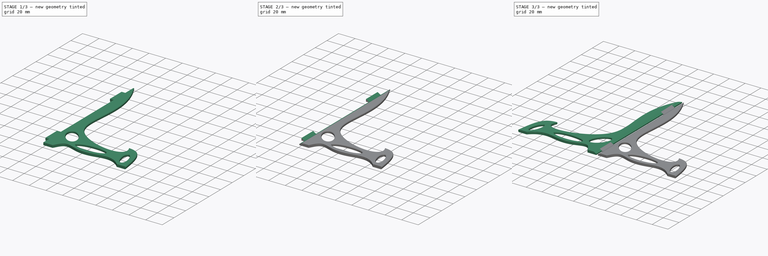
[diagram: build sequence overview — one tinted view per stage of 3, left to right]
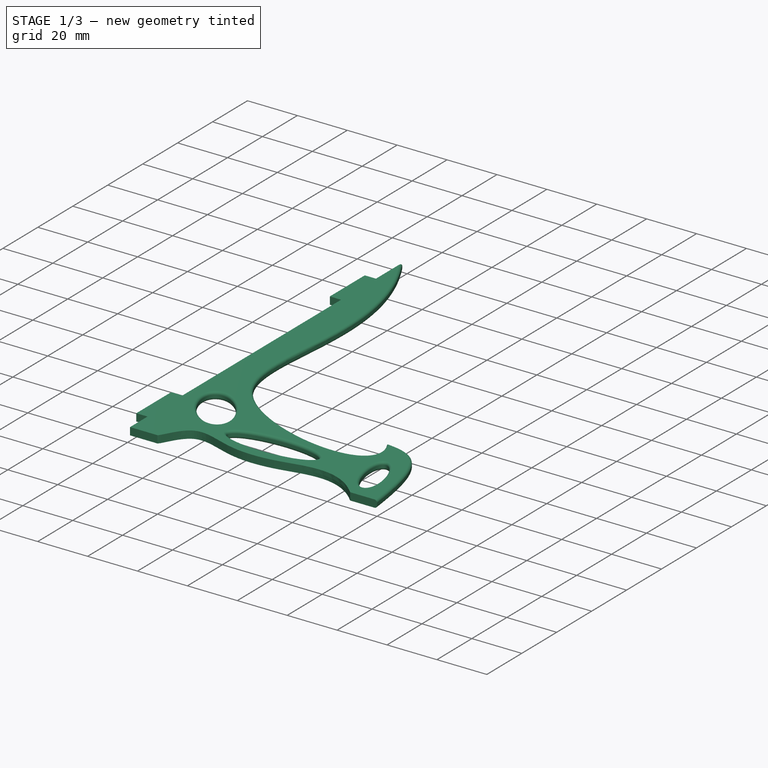
[diagram: stage 1 of 3 — iso view after this stage's code; geometry added in this stage tinted green]
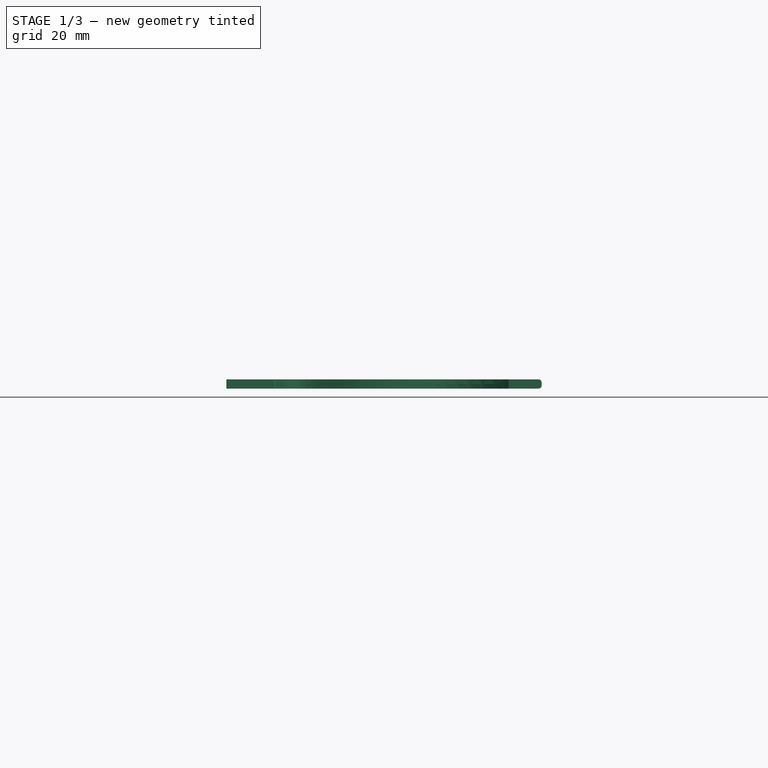
[diagram: stage 1 of 3 — front view after this stage's code; geometry added in this stage tinted green]
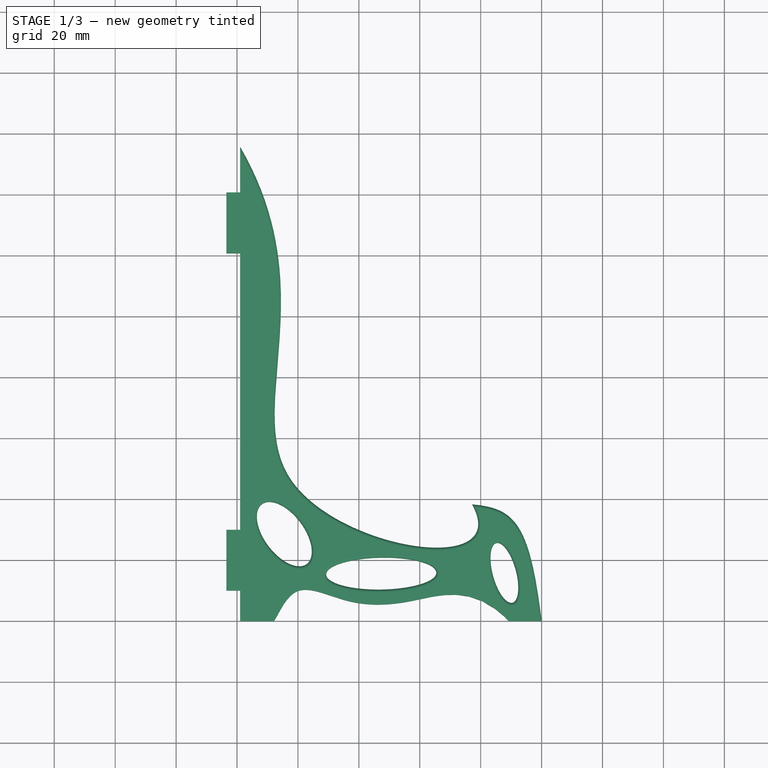
[diagram: stage 1 of 3 — top view after this stage's code; geometry added in this stage tinted green]
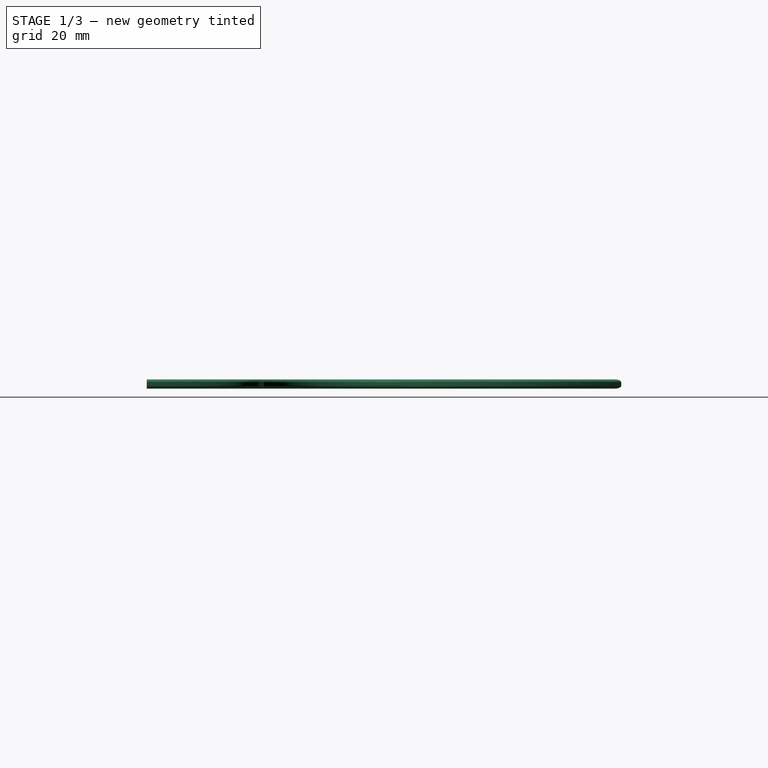
[diagram: stage 1 of 3 — right view after this stage's code; geometry added in this stage tinted green]
FCSTD DOCUMENT  (FreeCAD 0.20R27319 (Git))
Label: Plate Stand flex hinge
License: All rights reserved
LicenseURL: http://en.wikipedia.org/wiki/All_rights_reserved
objects: Sketcher::SketchObject×2, Spreadsheet::Sheet×1, PartDesign::Pad×1, PartDesign::Fillet×1, PartDesign::Pocket×1, PartDesign::Body×1, Part::Mirroring×1, Part::Fuse×1
note: 11 computed .brp shape members not serialized (recipe doc carries the construction recipe); baked Part::Feature solids carry a one-line shape summary decoded from their .brp

FEATURE [Sketcher::SketchObject] Sketch
  FullyConstrained = false
  MapMode = 5
  Support = -> [XY_Plane]
  sketch-geometry (55):
    g0-g3: Circle x4 (B-spline internal-alignment scaffolding for g4; pole/knot coordinates omitted)
    g4: BSplineCurve PolesCount=4 KnotsCount=2 Degree=3 IsPeriodic=0
    g5: GeomPoint X=77.1381 Y=38.3364 Z=0
    g6: GeomPoint X=100 Y=0 Z=0
    g7: Ellipse CenterX=15.5248 CenterY=28.5446 CenterZ=0 NormalX=0 NormalY=0 NormalZ=1 MajorRadius=12.2477 MinorRadius=6.51354 AngleXU=-0.925942
    g8: LineSegment StartX=22.8867 StartY=18.7564 StartZ=0 EndX=8.16296 EndY=38.3328 EndZ=0
    g9: LineSegment StartX=20.7304 StartY=32.4597 StartZ=0 EndX=10.3193 EndY=24.6294 EndZ=0
    g10: GeomPoint X=21.7593 Y=20.2553 Z=0
    g11: GeomPoint X=9.29036 Y=36.8338 Z=0
    g12: Ellipse CenterX=87.7776 CenterY=15.8203 CenterZ=0 NormalX=0 NormalY=0 NormalZ=1 MajorRadius=10.1255 MinorRadius=3.83233 AngleXU=-1.30426
    g13: LineSegment StartX=90.4445 StartY=6.05227 StartZ=0 EndX=85.1106 EndY=25.5883 EndZ=0
    g14: LineSegment StartX=91.4746 StartY=16.8297 StartZ=0 EndX=84.0806 EndY=14.8109 EndZ=0
    g15: GeomPoint X=90.2461 Y=6.77893 Z=0
    g16: GeomPoint X=85.309 Y=24.8616 Z=0
    g17: LineSegment StartX=1 StartY=0 StartZ=0 EndX=11.8069 EndY=0 EndZ=0
    g18: LineSegment StartX=100 StartY=0 StartZ=0 EndX=89.1931 EndY=0 EndZ=0
    g19-g25: Circle x7 (B-spline internal-alignment scaffolding for g26; pole/knot coordinates omitted)
    g26: BSplineCurve PolesCount=7 KnotsCount=5 Degree=3 IsPeriodic=0
    g27-g31: GeomPoint x5 (B-spline internal-alignment scaffolding for g26; pole/knot coordinates omitted)
    g32: Ellipse CenterX=47.3615 CenterY=15.5825 CenterZ=0 NormalX=0 NormalY=0 NormalZ=1 MajorRadius=18.0781 MinorRadius=5.2221 AngleXU=0.0168016
    g33: LineSegment StartX=65.437 StartY=15.8862 StartZ=0 EndX=29.2859 EndY=15.2788 EndZ=0
    g34: LineSegment StartX=47.2737 StartY=20.8039 StartZ=0 EndX=47.4492 EndY=10.3611 EndZ=0
    g35: GeomPoint X=64.6665 Y=15.8733 Z=0
    g36: GeomPoint X=30.0565 Y=15.2917 Z=0
    g37-g41: Circle x5 (B-spline internal-alignment scaffolding for g42; pole/knot coordinates omitted)
    g42: BSplineCurve PolesCount=5 KnotsCount=3 Degree=3 IsPeriodic=0
    g43: GeomPoint X=1 Y=155.774 Z=0
    g44: GeomPoint X=17.5271 Y=46.6979 Z=0
    g45: GeomPoint X=77.1381 Y=38.3364 Z=0
    g46: LineSegment StartX=1 StartY=155.774 StartZ=0 EndX=1 EndY=140.774 EndZ=0
    g47: LineSegment StartX=1 StartY=30 StartZ=0 EndX=-3.49694 EndY=30 EndZ=0
    g48: LineSegment StartX=-3.49694 StartY=30 StartZ=0 EndX=-3.49694 EndY=10 EndZ=0
    g49: LineSegment StartX=-3.49694 StartY=10 StartZ=0 EndX=1 EndY=10 EndZ=0
    g50: LineSegment StartX=1 StartY=10 StartZ=0 EndX=1 EndY=0 EndZ=0
    g51: LineSegment StartX=1 StartY=140.774 StartZ=0 EndX=-3.49694 EndY=140.774 EndZ=0
    g52: LineSegment StartX=-3.49694 StartY=140.774 StartZ=0 EndX=-3.49694 EndY=120.774 EndZ=0
    g53: LineSegment StartX=1 StartY=120.774 StartZ=0 EndX=1 EndY=30 EndZ=0
    g54: LineSegment StartX=-3.49694 StartY=120.774 StartZ=0 EndX=1 EndY=120.774 EndZ=0
  constraints (58):
    c: PointOnObject(g4,g-1)
    c: Weight(g0) = 1
    c: Equal(g0,g1)
    c: Equal(g0,g2)
    c: Equal(g0,g3)
    c: InternalAlignment(g0-g3 -> g4) x4
    c: InternalAlignment(g5,g4)
    c: InternalAlignment(g6,g4)
    c: InternalAlignment(g8-g11 -> g7) x4
    c: InternalAlignment(g13-g16 -> g12) x4
    c: PointOnObject(g17,g-1)
    c: Coincident(g18,g4)
    c: PointOnObject(g18,g-1)
    c: Equal(g17,g18)
    c: Coincident(g26,g17)
    c: Weight(g19) = 1
    c: Equal(g19,g20)
    c: PointOnObject(g20,g19)
    c: Equal(g19, g21-g25) x5
    c: Coincident(g26,g18)
    c: InternalAlignment(g19-g25 -> g26) x7
    c: InternalAlignment(g27-g31 -> g26) x5
    c: InternalAlignment(g33-g36 -> g32) x4
    c: DistanceX(g-1,g4) = 100
    c: Weight(g37) = 1
    c: Equal(g37, g38-g41) x4
    c: Coincident(g42,g4)
    c: InternalAlignment(g37-g41 -> g42) x5
    c: InternalAlignment(g43,g42)
    c: InternalAlignment(g44,g42)
    c: InternalAlignment(g45,g42)
    c: Coincident(g46,g42)
    c: Coincident(g50,g17)
    c: Vertical(g46)
    c: Horizontal(g17)
    c: DistanceX(g-1,g17) = 1
    c: Coincident(g47,g48)
    c: Coincident(g48,g49)
    c: Horizontal(g47)
    c: Horizontal(g49)
    c: Vertical(g48)
    c: Distance(g48) = 20
    c: DistanceY(g17,g49) = 10
    c: Coincident(g53,g47)
    c: PointOnObject(g50,g49)
    c: Coincident(g51,g52)
    c: Horizontal(g51)
    c: Vertical(g52)
    c: Coincident(g46,g51)
    c: Distance(g52) = 20
    c: Distance(g46) = 15
    c: Coincident(g54,g52)
    c: Coincident(g54,g53)
    c: Horizontal(g54)
    c: Vertical(g46,g53)
    c: Vertical(g53)
    c: Vertical(g49,g47)
    c: Vertical(g47,g52)
FEATURE [Spreadsheet::Sheet] Spreadsheet
  cells = A1=Height; B1(Height)=150; A2=Depth; B2(Depth)=100; A3=Thickness; B3(Thickness)=4; A4=XScale; B4(XScale)==Depth / 100; A5=YScale; B5(YScale)==Height / 150; A6=ZScale; B6(ZScale)==Thickness / 4; A7=Axle Diameter; B7(AxleDiameter)=1.5
FEATURE [PartDesign::Pad] Pad
  Direction = (0,0,1)
  Length = 3
  Length2 = 10
  Profile = -> Sketch
  ReferenceAxis = -> Sketch [N_Axis]
  Type = 0
FEATURE [Sketcher::SketchObject] Sketch001
  ExternalGeometry = -> [Pad]
  FullyConstrained = true
  MapMode = 5
  Placement = pos=(0,0,0) rot=(1,0,0;1.5708rad)
  Support = -> [Pad]
  sketch-geometry (3):
    g0: LineSegment StartX=-3.98372 StartY=3 StartZ=0 EndX=-4e-16 EndY=0.7 EndZ=0
    g1: LineSegment StartX=-4e-16 StartY=0.7 StartZ=0 EndX=3.98372 EndY=3 EndZ=0
    g2: LineSegment StartX=3.98372 StartY=3 StartZ=0 EndX=-3.98372 EndY=3 EndZ=0
  constraints (9):
    c: PointOnObject(g0,g-3)
    c: PointOnObject(g0,g-2)
    c: Coincident(g0,g1)
    c: PointOnObject(g1,g-3)
    c: Coincident(g1,g2)
    c: Coincident(g2,g0)
    c: Equal(g0,g1)
    c: Angle(g1,g0) = 2.0944
    c: DistanceY(g-1,g0) = 0.7
FEATURE [PartDesign::Fillet] Fillet
  Base = -> Pad [Edge50,Edge44,Edge3,Edge6,Edge47,Edge48,Edge45,Edge51,Edge4,Edge7]
  BaseFeature = -> Pad
  Radius = 1
  SupportTransform = false
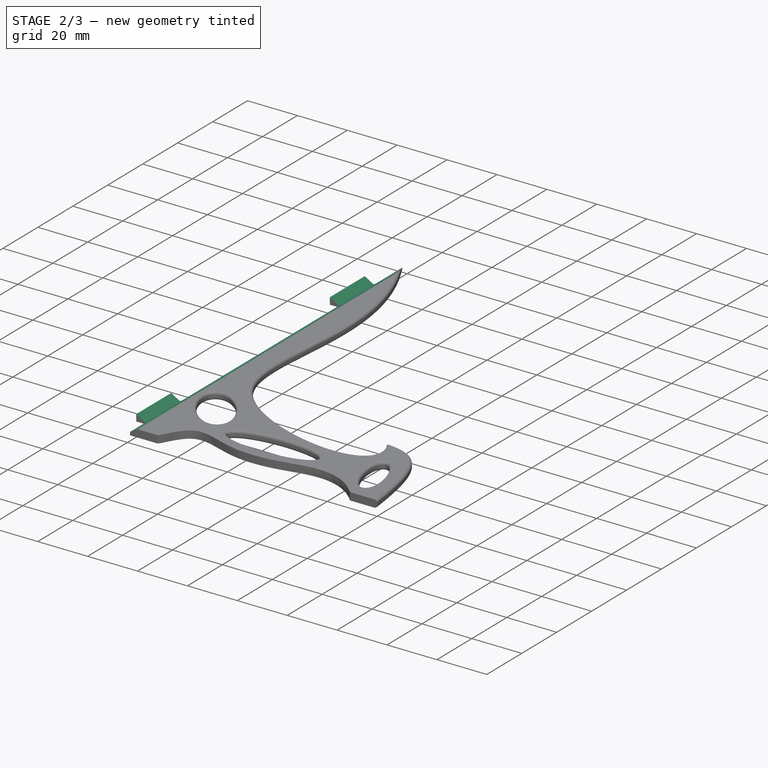
[diagram: stage 2 of 3 — iso view after this stage's code; geometry added in this stage tinted green]
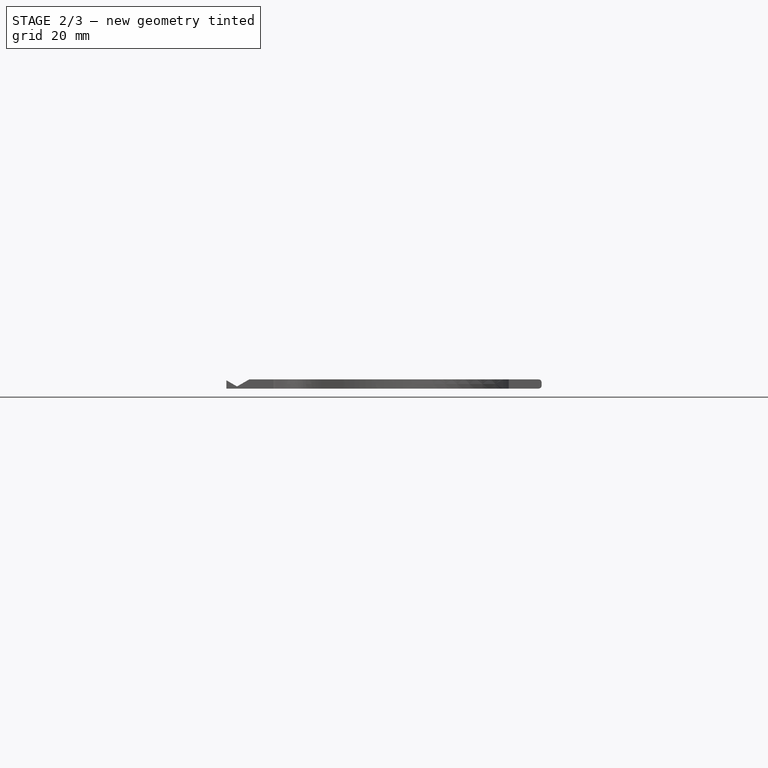
[diagram: stage 2 of 3 — front view after this stage's code; geometry added in this stage tinted green]
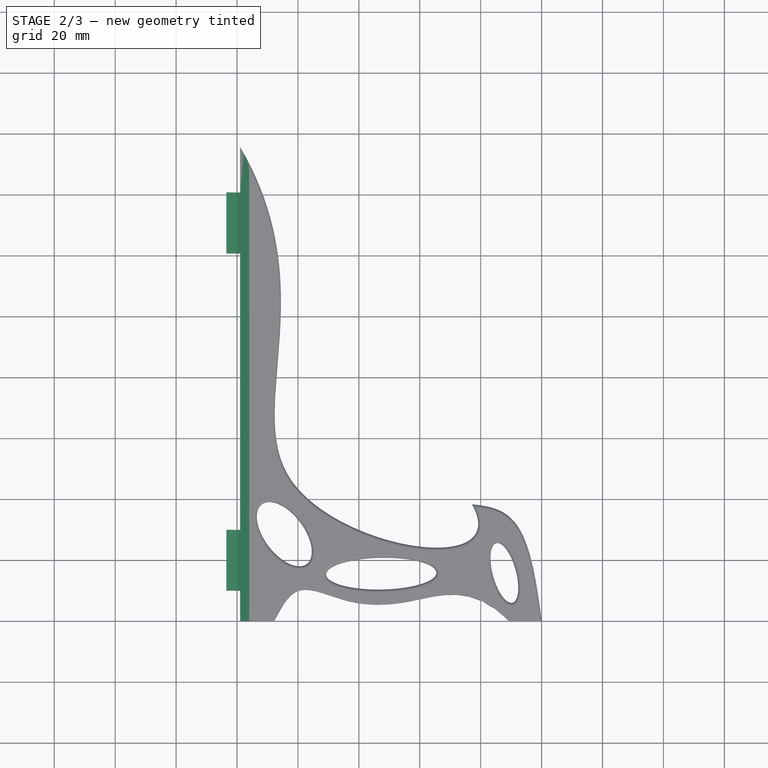
[diagram: stage 2 of 3 — top view after this stage's code; geometry added in this stage tinted green]
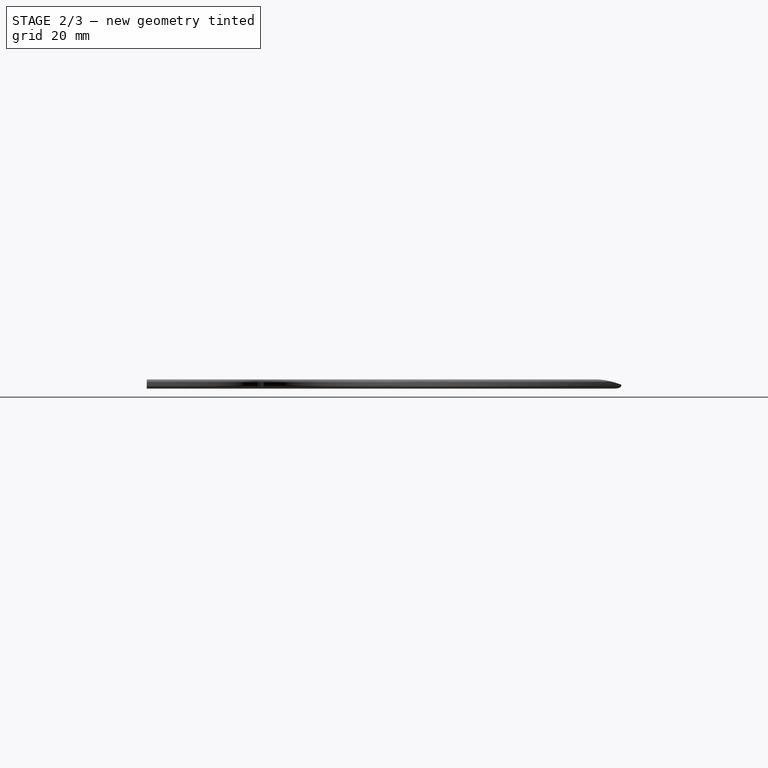
[diagram: stage 2 of 3 — right view after this stage's code; geometry added in this stage tinted green]
FEATURE [PartDesign::Pocket] Pocket
  BaseFeature = -> Fillet
  Direction = (0,1,-2e-16)
  Length = 5
  Length2 = 5
  Profile = -> Sketch001
  ReferenceAxis = -> Sketch001 [N_Axis]
  Type = 1
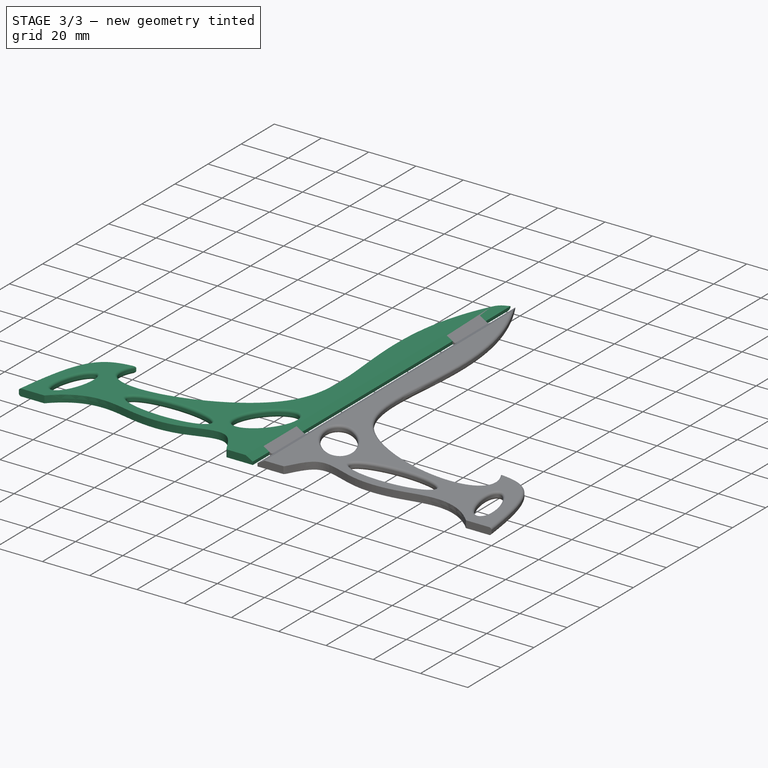
[diagram: stage 3 of 3 — iso view after this stage's code; geometry added in this stage tinted green]
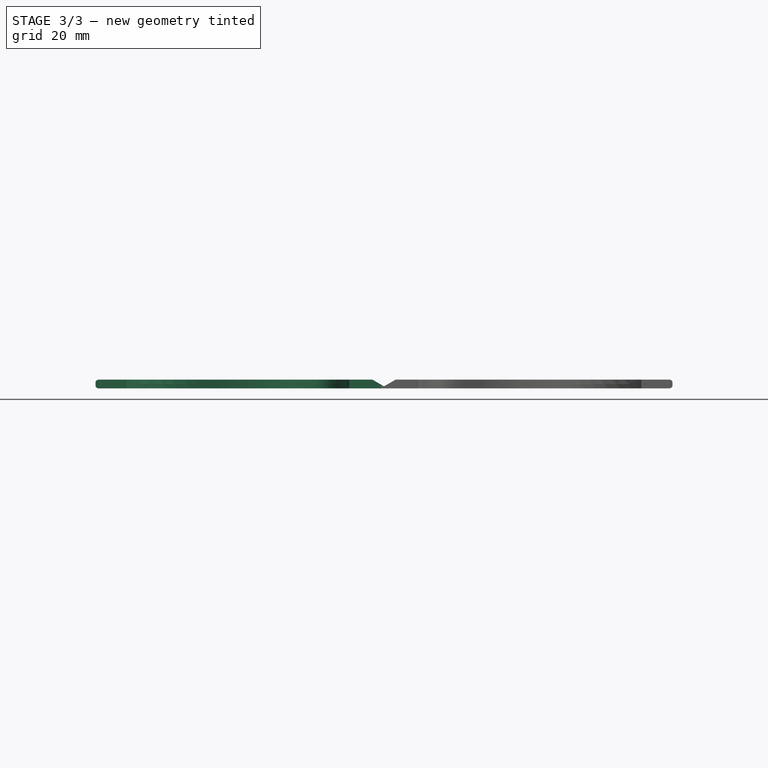
[diagram: stage 3 of 3 — front view after this stage's code; geometry added in this stage tinted green]
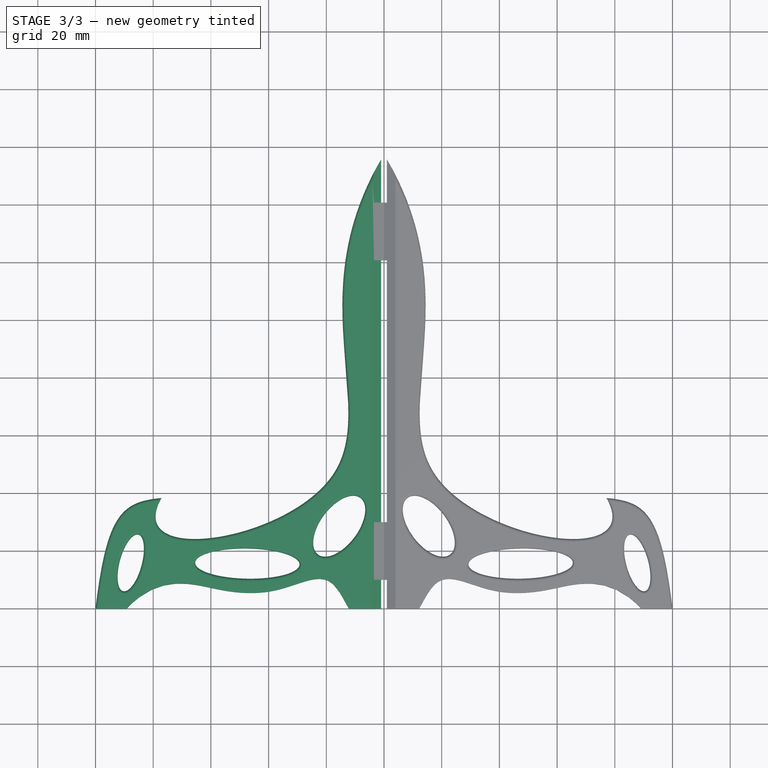
[diagram: stage 3 of 3 — top view after this stage's code; geometry added in this stage tinted green]
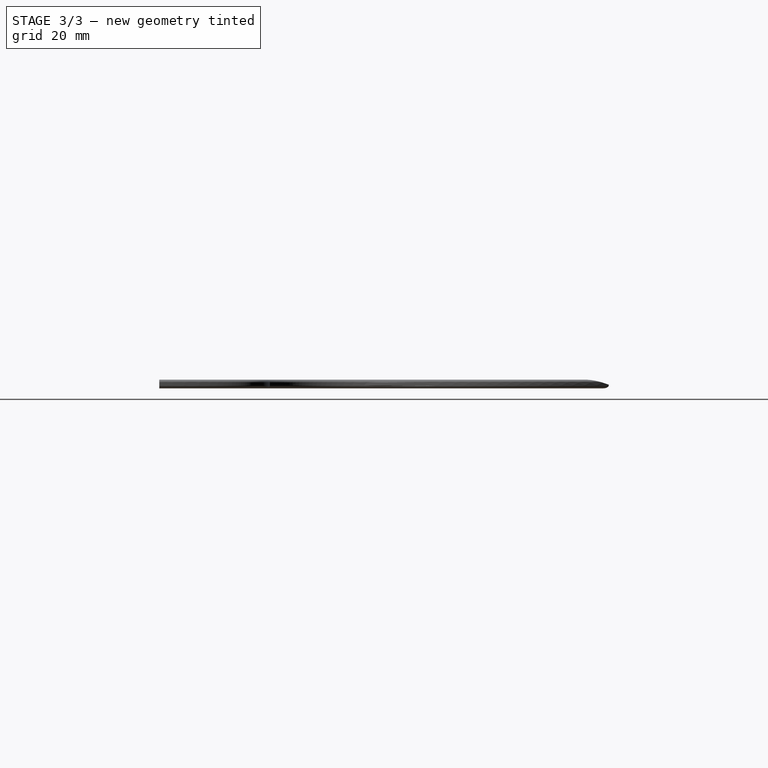
[diagram: stage 3 of 3 — right view after this stage's code; geometry added in this stage tinted green]
FEATURE [PartDesign::Body] Body
  Group = -> [Sketch,Pad,Fillet,Sketch001,Pocket]
  Origin = -> Origin
  Tip = -> Pocket
FEATURE [Part::Mirroring] Part__Mirroring  label="Pocket (Mirror #1)"
  Base = (0,0,0)
  Normal = (1,0,0)
  Source = -> Pocket
FEATURE [Part::Fuse] Fusion
  Base = -> Pocket
  Tool = -> Part__Mirroring
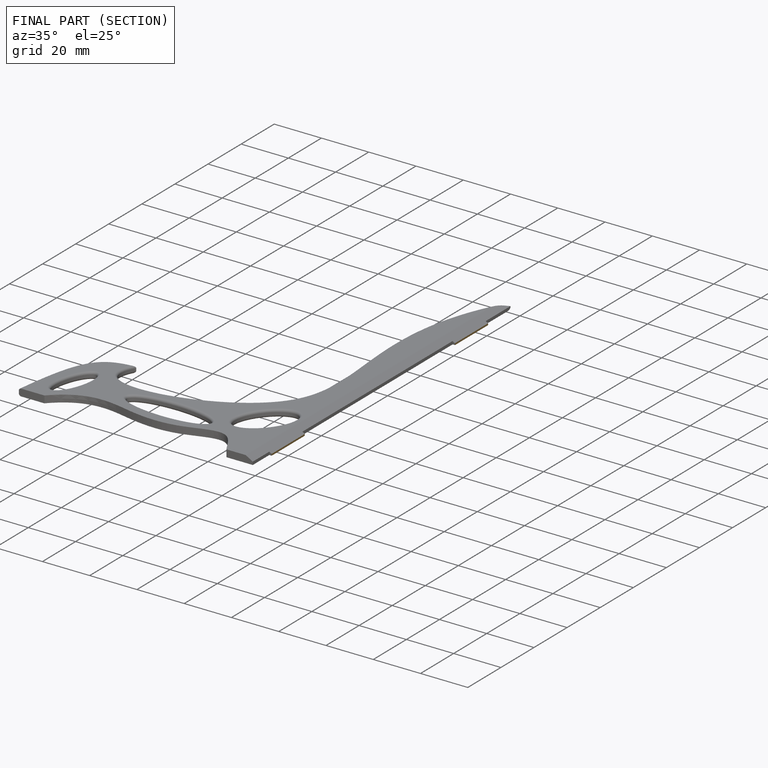
[diagram: finished part — half-section view (interior)]
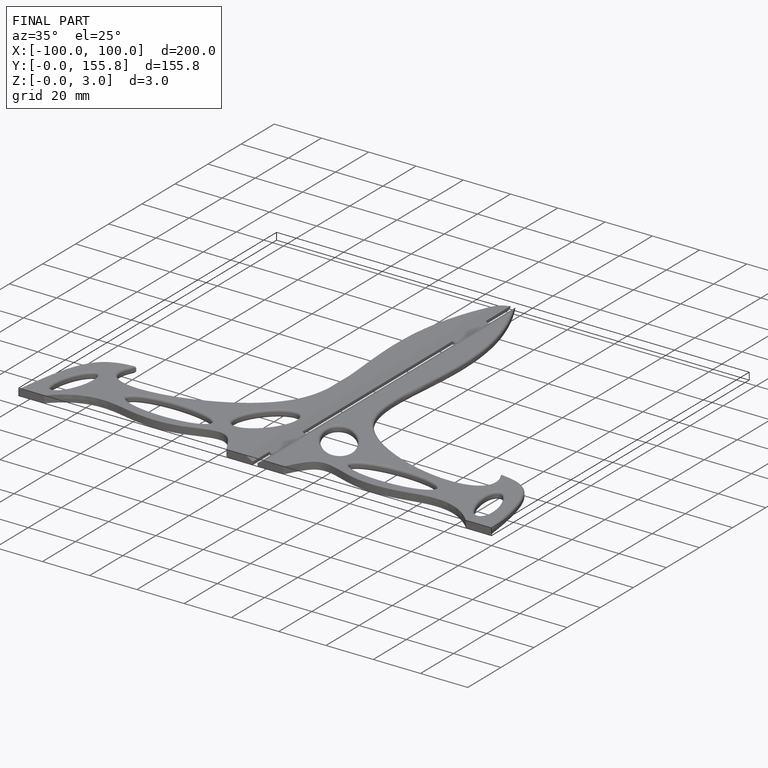
[diagram: finished part — iso view with bounding-box wireframe]
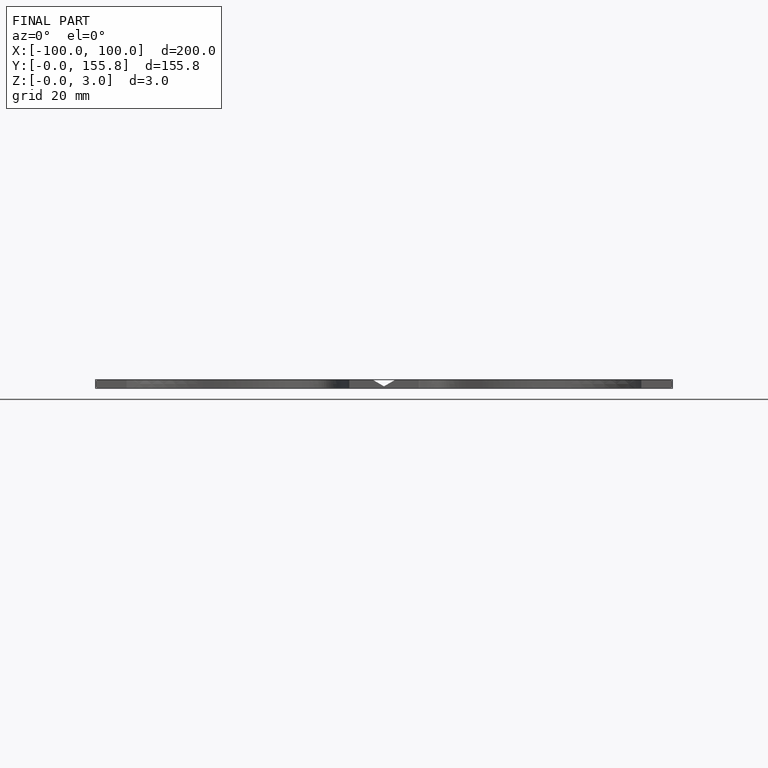
[diagram: finished part — front view with bounding-box wireframe]
